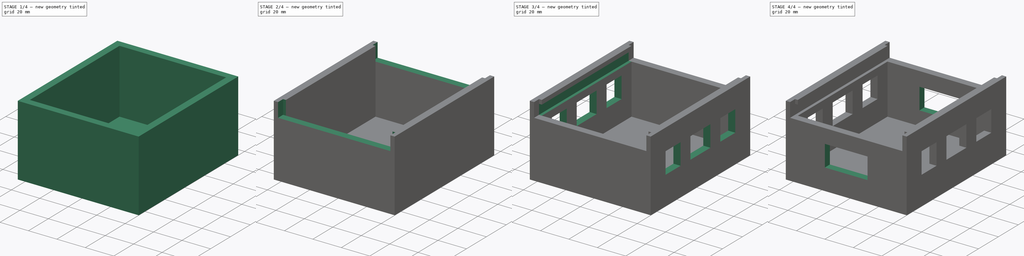
[diagram: build sequence overview — one tinted view per stage of 4, left to right]
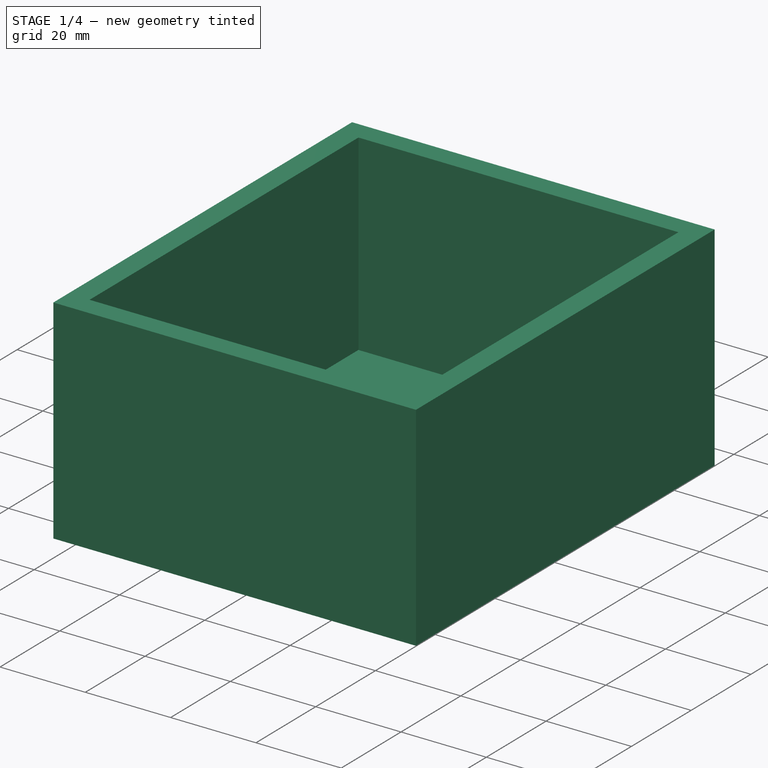
[diagram: stage 1 of 4 — iso view after this stage's code; geometry added in this stage tinted green]
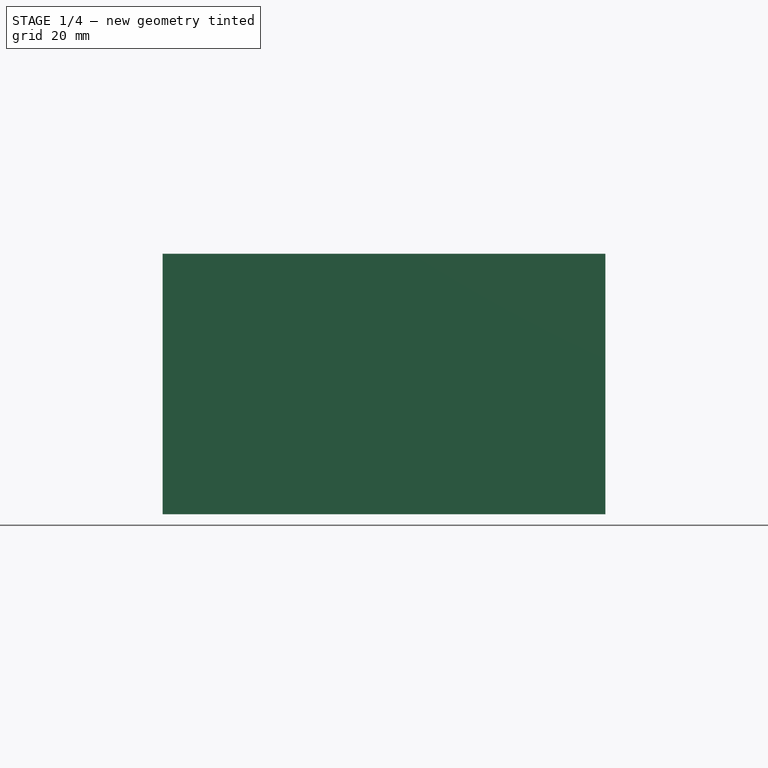
[diagram: stage 1 of 4 — front view after this stage's code; geometry added in this stage tinted green]
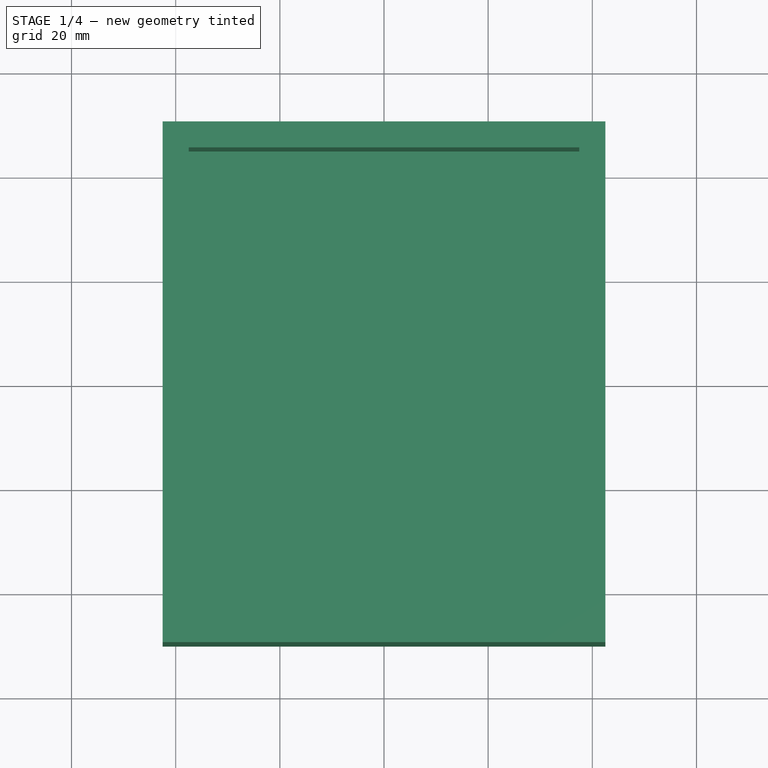
[diagram: stage 1 of 4 — top view after this stage's code; geometry added in this stage tinted green]
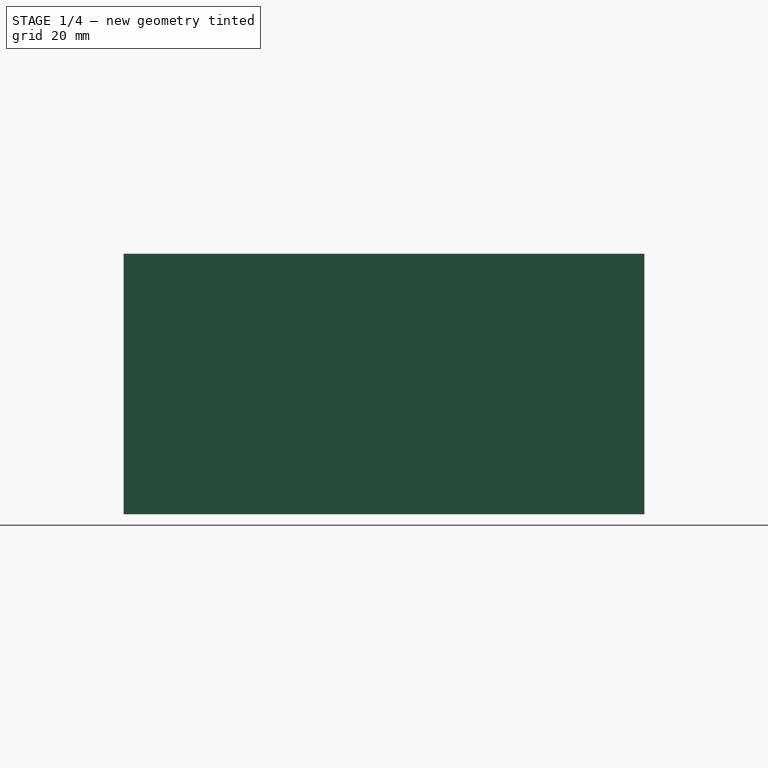
[diagram: stage 1 of 4 — right view after this stage's code; geometry added in this stage tinted green]
FCSTD DOCUMENT  (FreeCAD 0.19R24366 (Git))
Label: Box_raspberry_def
License: All rights reserved
LicenseURL: http://en.wikipedia.org/wiki/All_rights_reserved
objects: Sketcher::SketchObject×15, PartDesign::Pocket×8, PartDesign::Pad×1, PartDesign::Thickness×1, PartDesign::Body×1
note: 36 computed .brp shape members not serialized (recipe doc carries the construction recipe); baked Part::Feature solids carry a one-line shape summary decoded from their .brp

FEATURE [Sketcher::SketchObject] Sketch
  FullyConstrained = true
  MapMode = 5
  Support = -> [XY_Plane]
  sketch-geometry (4):
    g0: LineSegment StartX=-37.5 StartY=-45 StartZ=0 EndX=37.5 EndY=-45 EndZ=0
    g1: LineSegment StartX=37.5 StartY=-45 StartZ=0 EndX=37.5 EndY=45 EndZ=0
    g2: LineSegment StartX=37.5 StartY=45 StartZ=0 EndX=-37.5 EndY=45 EndZ=0
    g3: LineSegment StartX=-37.5 StartY=45 StartZ=0 EndX=-37.5 EndY=-45 EndZ=0
  constraints (11):
    c: Coincident(g0,g1)
    c: Coincident(g1,g2)
    c: Coincident(g2,g3)
    c: Coincident(g3,g0)
    c: Horizontal(g0)
    c: Horizontal(g2)
    c: Vertical(g1)
    c: Vertical(g3)
    c: DistanceX(g0,g0) = 75
    c: DistanceY(g0,g1) = 90
    c: Symmetric(g1,g0,g-1)
FEATURE [PartDesign::Pad] Pad
  Direction = (1,1,1)
  Length = 45
  Length2 = 100
  Profile = -> Sketch
  Type = 0
FEATURE [PartDesign::Thickness] Thickness
  Base = -> Pad [Face6]
  BaseFeature = -> Pad
  Intersection = false
  Join = 1
  Mode = 0
  SupportTransform = false
  Value = 5
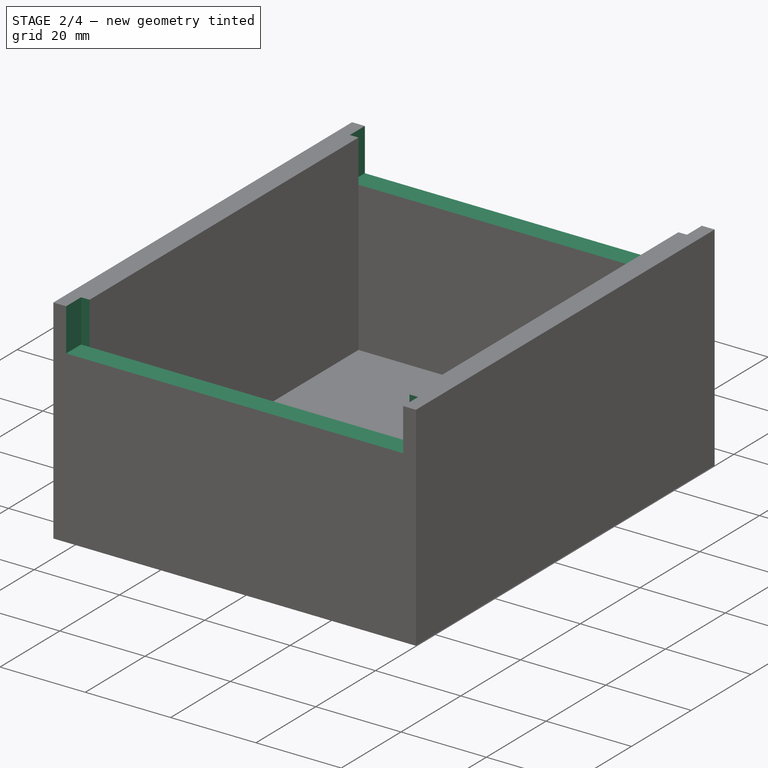
[diagram: stage 2 of 4 — iso view after this stage's code; geometry added in this stage tinted green]
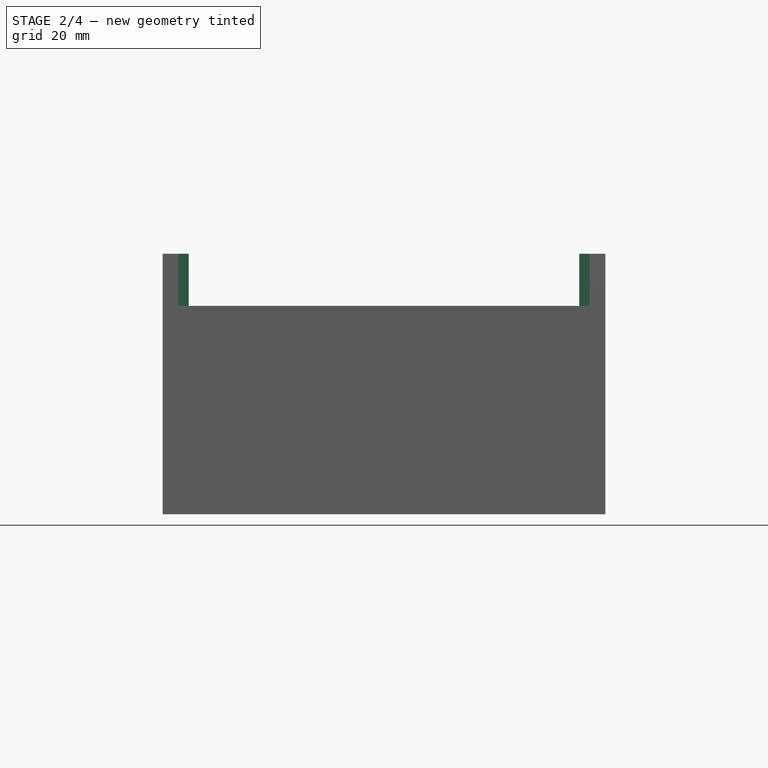
[diagram: stage 2 of 4 — front view after this stage's code; geometry added in this stage tinted green]
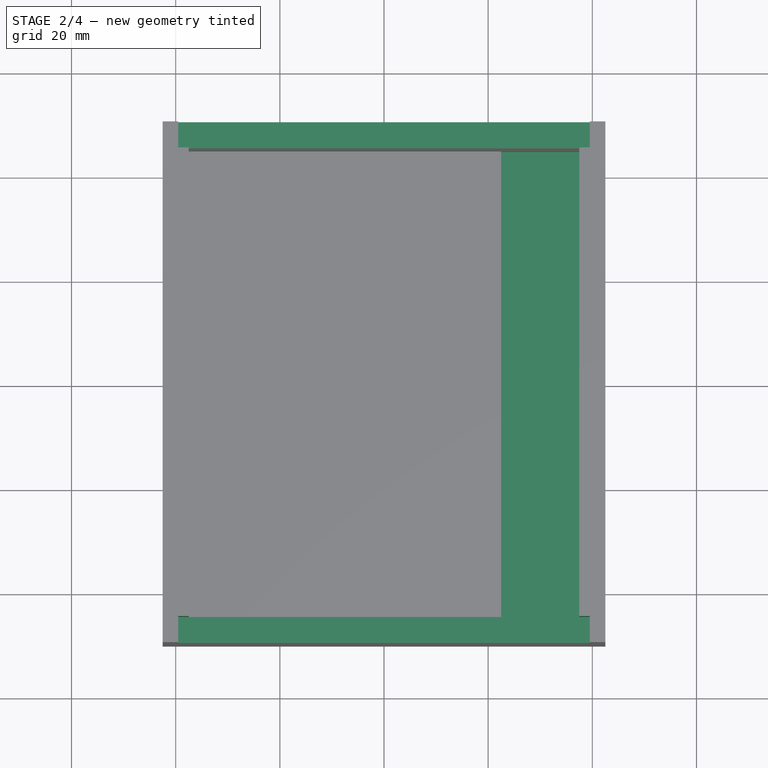
[diagram: stage 2 of 4 — top view after this stage's code; geometry added in this stage tinted green]
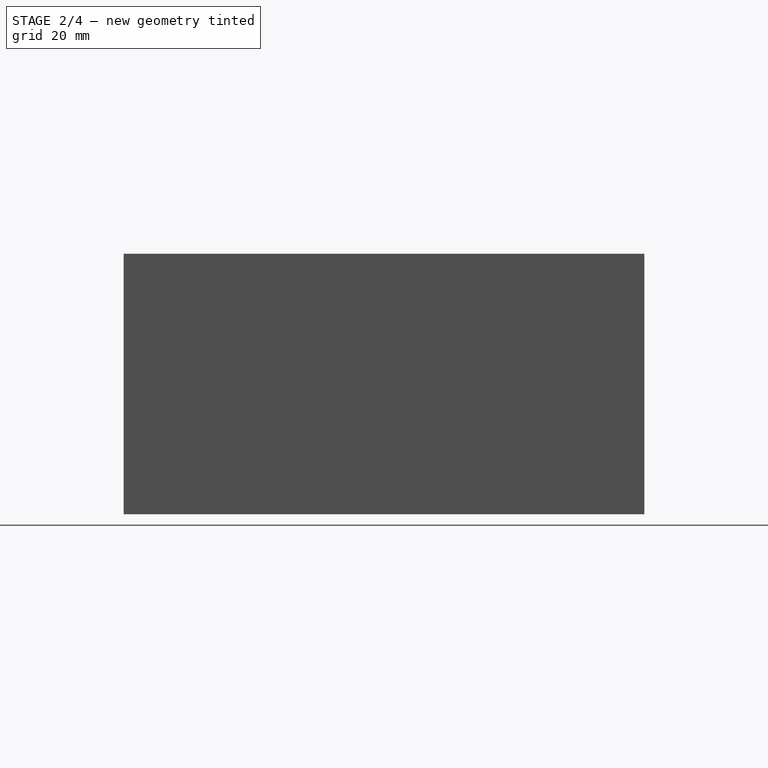
[diagram: stage 2 of 4 — right view after this stage's code; geometry added in this stage tinted green]
FEATURE [Sketcher::SketchObject] Sketch001
  FullyConstrained = true
  MapMode = 5
  Support = -> [Thickness]
FEATURE [Sketcher::SketchObject] Sketch002
  FullyConstrained = true
  MapMode = 5
  Support = -> [Thickness]
  sketch-geometry (4):
    g0: LineSegment StartX=37.5 StartY=45 StartZ=0 EndX=22.5 EndY=45 EndZ=0
    g1: LineSegment StartX=22.5 StartY=45 StartZ=0 EndX=22.5 EndY=-45 EndZ=0
    g2: LineSegment StartX=22.5 StartY=-45 StartZ=0 EndX=37.5 EndY=-45 EndZ=0
    g3: LineSegment StartX=37.5 StartY=-45 StartZ=0 EndX=37.5 EndY=45 EndZ=0
  constraints (12):
    c: Coincident(g0,g1)
    c: Coincident(g1,g2)
    c: Coincident(g2,g3)
    c: Coincident(g3,g0)
    c: Horizontal(g0)
    c: Horizontal(g2)
    c: Vertical(g1)
    c: Vertical(g3)
    c: DistanceX(g1,g2) = 15
    c: DistanceY(g1,g1) = 90
    c: DistanceY(g1,g-1) = 45
    c: DistanceX(g-1,g1) = 22.5
FEATURE [PartDesign::Pocket] Pocket
  BaseFeature = -> Thickness
  Length = 3.5
  Length2 = 100
  Profile = -> Sketch002
  Type = 0
FEATURE [Sketcher::SketchObject] Sketch003
  FullyConstrained = true
  MapMode = 5
  Placement = pos=(0,-50,0) rot=(1,0,0;1.5708rad)
  Support = -> [Pocket]
  sketch-geometry (4):
    g0: LineSegment StartX=-39.5 StartY=45 StartZ=0 EndX=39.5 EndY=45 EndZ=0
    g1: LineSegment StartX=39.5 StartY=45 StartZ=0 EndX=39.5 EndY=35 EndZ=0
    g2: LineSegment StartX=39.5 StartY=35 StartZ=0 EndX=-39.5 EndY=35 EndZ=0
    g3: LineSegment StartX=-39.5 StartY=35 StartZ=0 EndX=-39.5 EndY=45 EndZ=0
  constraints (12):
    c: Coincident(g0,g1)
    c: Coincident(g1,g2)
    c: Coincident(g2,g3)
    c: Coincident(g3,g0)
    c: Horizontal(g0)
    c: Horizontal(g2)
    c: Vertical(g1)
    c: Vertical(g3)
    c: DistanceY(g1,g0) = 10
    c: DistanceY(g-1,g1) = 35
    c: DistanceX(g0,g0) = 79
    c: DistanceX(g0,g-1) = 39.5
FEATURE [PartDesign::Pocket] Pocket001
  BaseFeature = -> Pocket
  Length = 5
  Length2 = 100
  Profile = -> Sketch003
  Type = 0
FEATURE [Sketcher::SketchObject] Sketch004
  FullyConstrained = false
  MapMode = 5
  Placement = pos=(0,50,0) rot=(0,0.707107,0.707107;3.14159rad)
  Support = -> [Pocket001]
  sketch-geometry (4):
    g0: LineSegment StartX=-39.5 StartY=45 StartZ=0 EndX=39.5 EndY=45 EndZ=0
    g1: LineSegment StartX=39.5 StartY=45 StartZ=0 EndX=39.5 EndY=35 EndZ=0
    g2: LineSegment StartX=39.5 StartY=35 StartZ=0 EndX=-39.5 EndY=35 EndZ=0
    g3: LineSegment StartX=-39.5 StartY=35 StartZ=0 EndX=-39.5 EndY=45 EndZ=0
  constraints (11):
    c: Coincident(g0,g1)
    c: Coincident(g1,g2)
    c: Coincident(g2,g3)
    c: Coincident(g3,g0)
    c: Horizontal(g0)
    c: Horizontal(g2)
    c: Vertical(g1)
    c: Vertical(g3)
    c: DistanceY(g1,g0) = 10
    c: DistanceX(g2,g1) = 79
    c: DistanceX(g2,g-1) = 39.5
FEATURE [PartDesign::Pocket] Pocket002
  BaseFeature = -> Pocket001
  Length = 5
  Length2 = 100
  Profile = -> Sketch004
  Type = 0
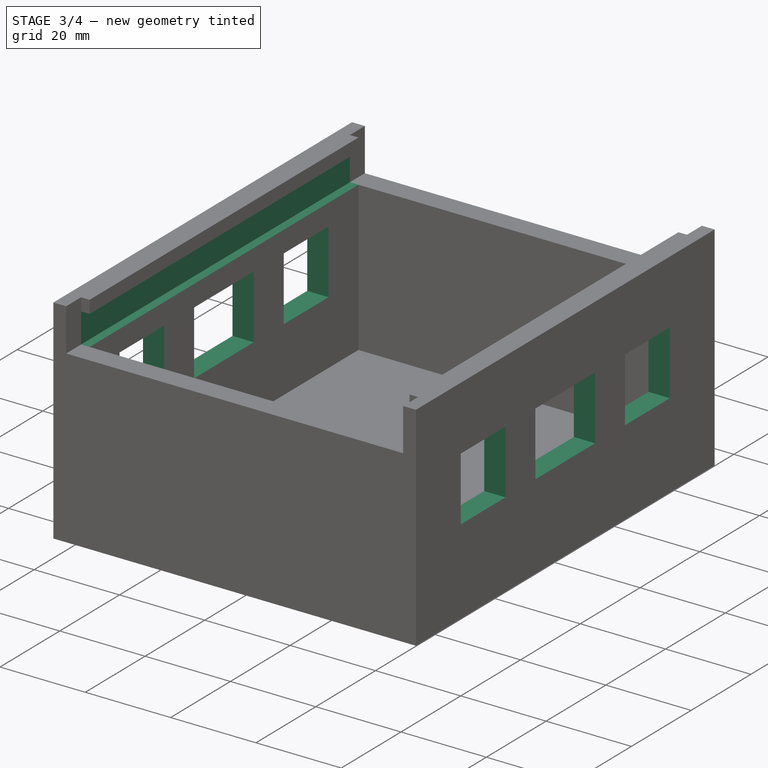
[diagram: stage 3 of 4 — iso view after this stage's code; geometry added in this stage tinted green]
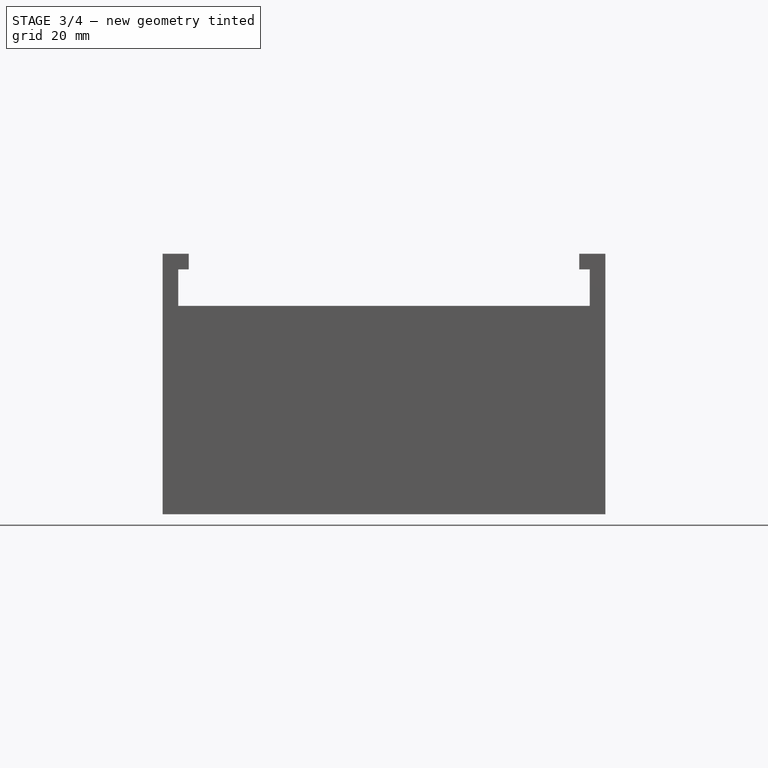
[diagram: stage 3 of 4 — front view after this stage's code; geometry added in this stage tinted green]
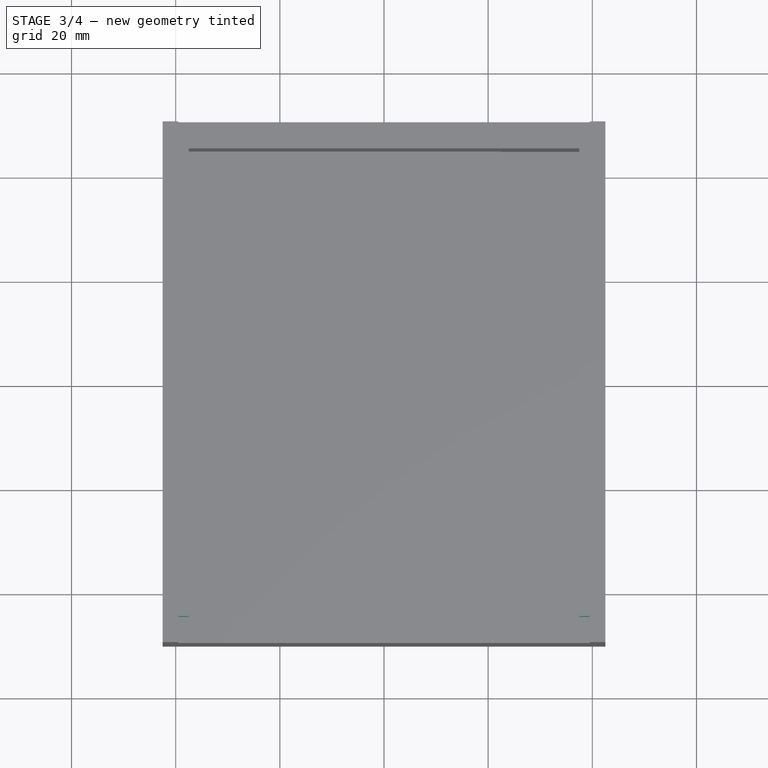
[diagram: stage 3 of 4 — top view after this stage's code; geometry added in this stage tinted green]
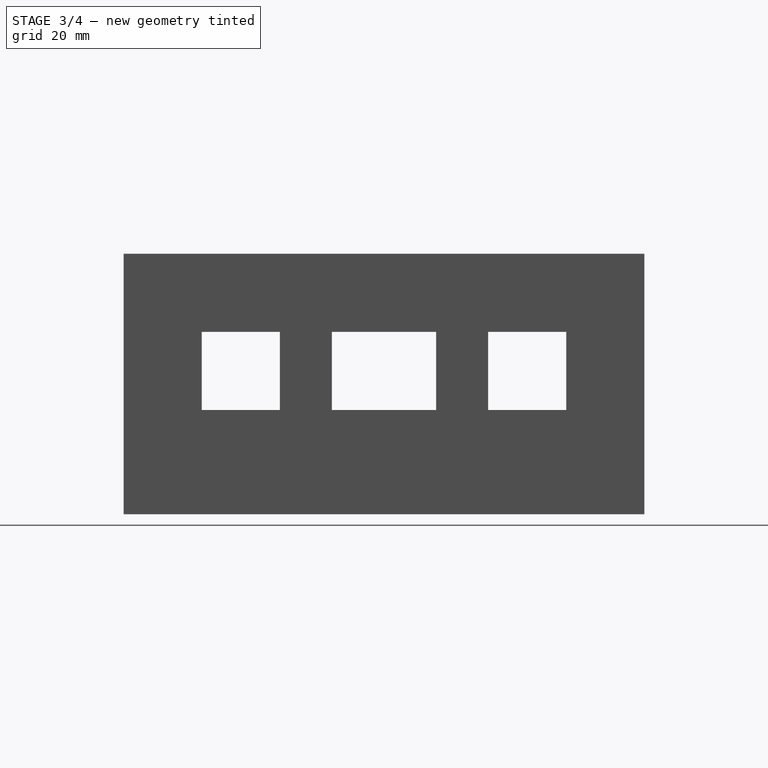
[diagram: stage 3 of 4 — right view after this stage's code; geometry added in this stage tinted green]
FEATURE [Sketcher::SketchObject] Sketch005
  FullyConstrained = true
  MapMode = 5
  Placement = pos=(0,45,0) rot=(0,0.707107,0.707107;3.14159rad)
  Support = -> [Pocket002]
  sketch-geometry (4):
    g0: LineSegment StartX=-39.5 StartY=35 StartZ=0 EndX=39.5 EndY=35 EndZ=0
    g1: LineSegment StartX=39.5 StartY=35 StartZ=0 EndX=39.5 EndY=42 EndZ=0
    g2: LineSegment StartX=39.5 StartY=42 StartZ=0 EndX=-39.5 EndY=42 EndZ=0
    g3: LineSegment StartX=-39.5 StartY=42 StartZ=0 EndX=-39.5 EndY=35 EndZ=0
  constraints (12):
    c: Coincident(g0,g1)
    c: Coincident(g1,g2)
    c: Coincident(g2,g3)
    c: Coincident(g3,g0)
    c: Horizontal(g0)
    c: Horizontal(g2)
    c: Vertical(g1)
    c: Vertical(g3)
    c: DistanceX(g2,g2) = 79
    c: DistanceX(g2,g-1) = 39.5
    c: DistanceY(g-1,g0) = 35
    c: DistanceY(g0,g1) = 7
FEATURE [PartDesign::Pocket] Pocket003
  BaseFeature = -> Pocket002
  Length = 90
  Length2 = 100
  Profile = -> Sketch005
  Type = 0
FEATURE [Sketcher::SketchObject] Sketch006
  FullyConstrained = false
  MapMode = 5
  Placement = pos=(-42.5,0,0) rot=(0.57735,-0.57735,-0.57735;2.0944rad)
  Support = -> [Pocket003]
  sketch-geometry (12):
    g0: LineSegment StartX=-35 StartY=30 StartZ=0 EndX=-20 EndY=30 EndZ=0
    g1: LineSegment StartX=-20 StartY=30 StartZ=0 EndX=-20 EndY=15 EndZ=0
    g2: LineSegment StartX=-20 StartY=15 StartZ=0 EndX=-35 EndY=15 EndZ=0
    g3: LineSegment StartX=-35 StartY=15 StartZ=0 EndX=-35 EndY=30 EndZ=0
    g4: LineSegment StartX=35 StartY=30 StartZ=0 EndX=20 EndY=30 EndZ=0
    g5: LineSegment StartX=20 StartY=30 StartZ=0 EndX=20 EndY=15 EndZ=0
    g6: LineSegment StartX=20 StartY=15 StartZ=0 EndX=35 EndY=15 EndZ=0
    g7: LineSegment StartX=35 StartY=15 StartZ=0 EndX=35 EndY=30 EndZ=0
    g8: LineSegment StartX=-10 StartY=30 StartZ=0 EndX=10 EndY=30 EndZ=0
    g9: LineSegment StartX=10 StartY=30 StartZ=0 EndX=10 EndY=15 EndZ=0
    g10: LineSegment StartX=10 StartY=15 StartZ=0 EndX=-10 EndY=15 EndZ=0
    g11: LineSegment StartX=-10 StartY=15 StartZ=0 EndX=-10 EndY=30 EndZ=0
  constraints (24):
    c: Coincident(g0,g1)
    c: Coincident(g1,g2)
    c: Coincident(g2,g3)
    c: Coincident(g3,g0)
    c: Horizontal(g0)
    c: Horizontal(g2)
    c: Vertical(g1)
    c: Vertical(g3)
    c: Coincident(g4,g5)
    c: Coincident(g5,g6)
    c: Coincident(g6,g7)
    c: Coincident(g7,g4)
    c: Horizontal(g4)
    c: Horizontal(g6)
    c: Vertical(g5)
    c: Vertical(g7)
    c: Coincident(g8,g9)
    c: Coincident(g9,g10)
    c: Coincident(g10,g11)
    c: Coincident(g11,g8)
    c: Horizontal(g8)
    c: Horizontal(g10)
    c: Vertical(g9)
    c: Vertical(g11)
FEATURE [PartDesign::Pocket] Pocket004
  BaseFeature = -> Pocket003
  Length = 5
  Length2 = 100
  Profile = -> Sketch006
  Type = 0
FEATURE [Sketcher::SketchObject] Sketch007
  FullyConstrained = false
  MapMode = 5
  Placement = pos=(42.5,0,0) rot=(0.57735,0.57735,0.57735;2.0944rad)
  Support = -> [Pocket004]
  sketch-geometry (12):
    g0: LineSegment StartX=-35 StartY=30 StartZ=0 EndX=-20 EndY=30 EndZ=0
    g1: LineSegment StartX=-20 StartY=30 StartZ=0 EndX=-20 EndY=15 EndZ=0
    g2: LineSegment StartX=-20 StartY=15 StartZ=0 EndX=-35 EndY=15 EndZ=0
    g3: LineSegment StartX=-35 StartY=15 StartZ=0 EndX=-35 EndY=30 EndZ=0
    g4: LineSegment StartX=35 StartY=30 StartZ=0 EndX=20 EndY=30 EndZ=0
    g5: LineSegment StartX=20 StartY=30 StartZ=0 EndX=20 EndY=15 EndZ=0
    g6: LineSegment StartX=20 StartY=15 StartZ=0 EndX=35 EndY=15 EndZ=0
    g7: LineSegment StartX=35 StartY=15 StartZ=0 EndX=35 EndY=30 EndZ=0
    g8: LineSegment StartX=-10 StartY=30 StartZ=0 EndX=10 EndY=30 EndZ=0
    g9: LineSegment StartX=10 StartY=30 StartZ=0 EndX=10 EndY=15 EndZ=0
    g10: LineSegment StartX=10 StartY=15 StartZ=0 EndX=-10 EndY=15 EndZ=0
    g11: LineSegment StartX=-10 StartY=15 StartZ=0 EndX=-10 EndY=30 EndZ=0
  constraints (24):
    c: Coincident(g0,g1)
    c: Coincident(g1,g2)
    c: Coincident(g2,g3)
    c: Coincident(g3,g0)
    c: Horizontal(g0)
    c: Horizontal(g2)
    c: Vertical(g1)
    c: Vertical(g3)
    c: Coincident(g4,g5)
    c: Coincident(g5,g6)
    c: Coincident(g6,g7)
    c: Coincident(g7,g4)
    c: Horizontal(g4)
    c: Horizontal(g6)
    c: Vertical(g5)
    c: Vertical(g7)
    c: Coincident(g8,g9)
    c: Coincident(g9,g10)
    c: Coincident(g10,g11)
    c: Coincident(g11,g8)
    c: Horizontal(g8)
    c: Horizontal(g10)
    c: Vertical(g9)
    c: Vertical(g11)
FEATURE [PartDesign::Pocket] Pocket005
  BaseFeature = -> Pocket004
  Length = 5
  Length2 = 100
  Profile = -> Sketch007
  Type = 0
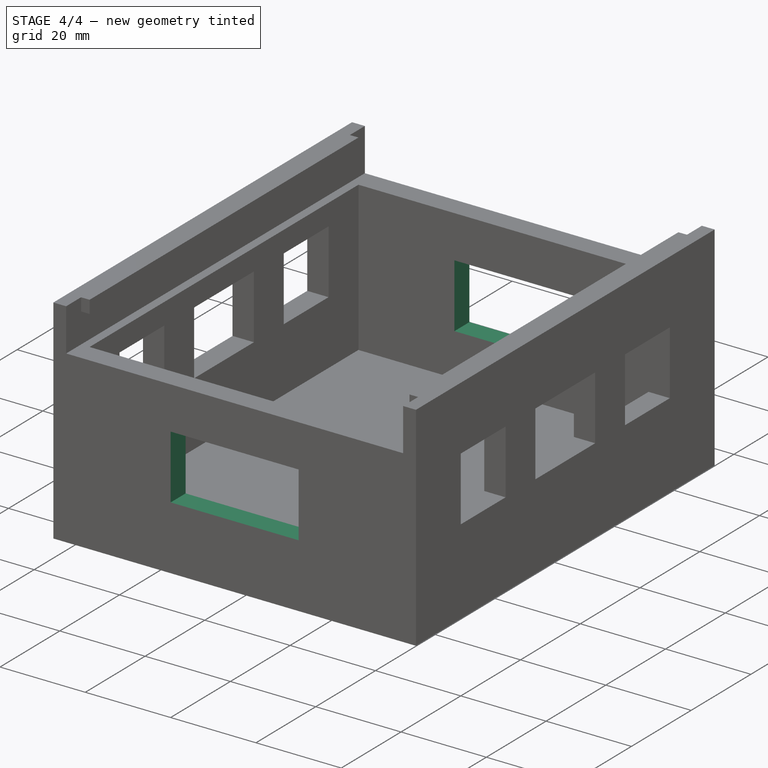
[diagram: stage 4 of 4 — iso view after this stage's code; geometry added in this stage tinted green]
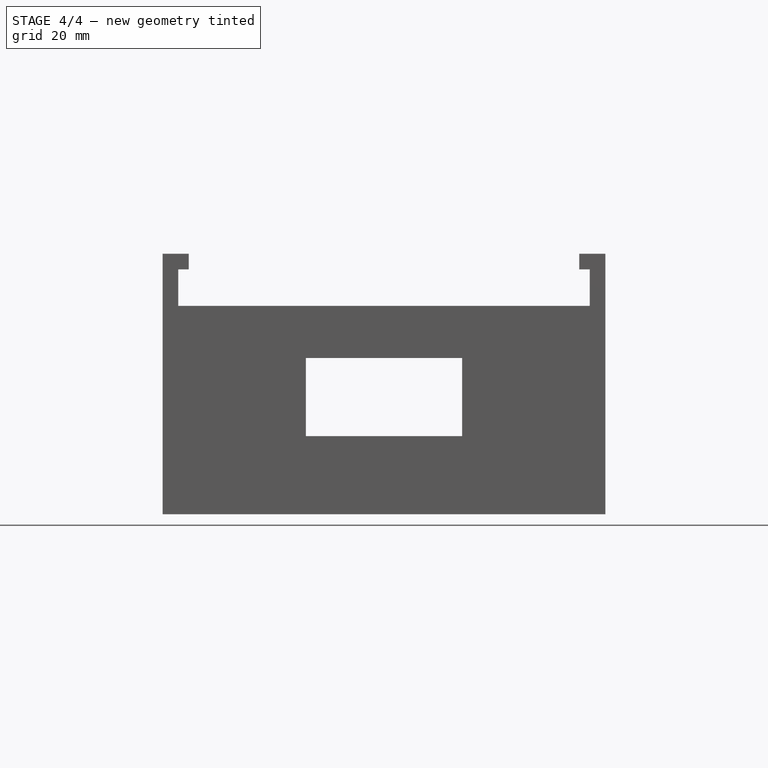
[diagram: stage 4 of 4 — front view after this stage's code; geometry added in this stage tinted green]
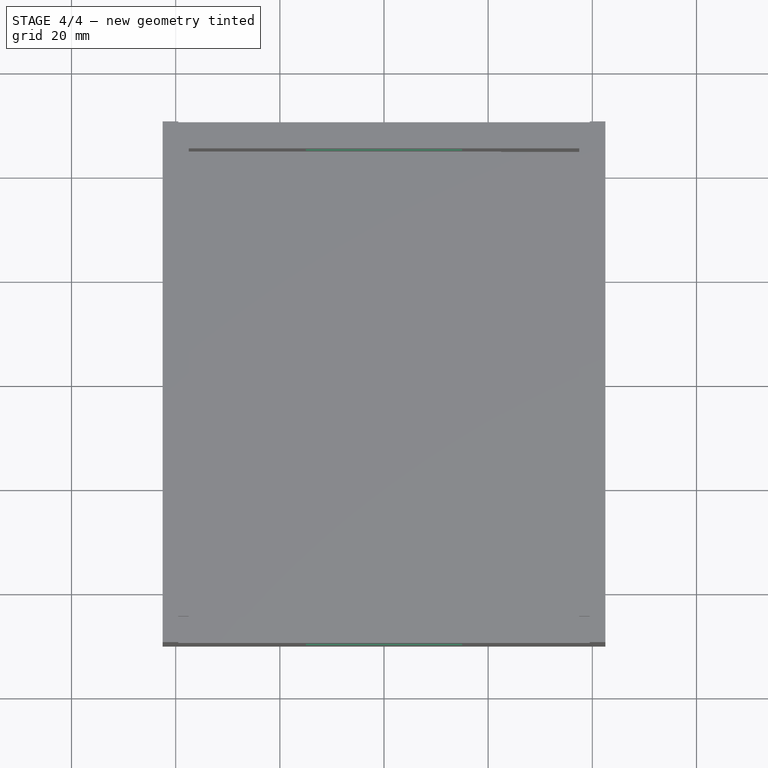
[diagram: stage 4 of 4 — top view after this stage's code; geometry added in this stage tinted green]
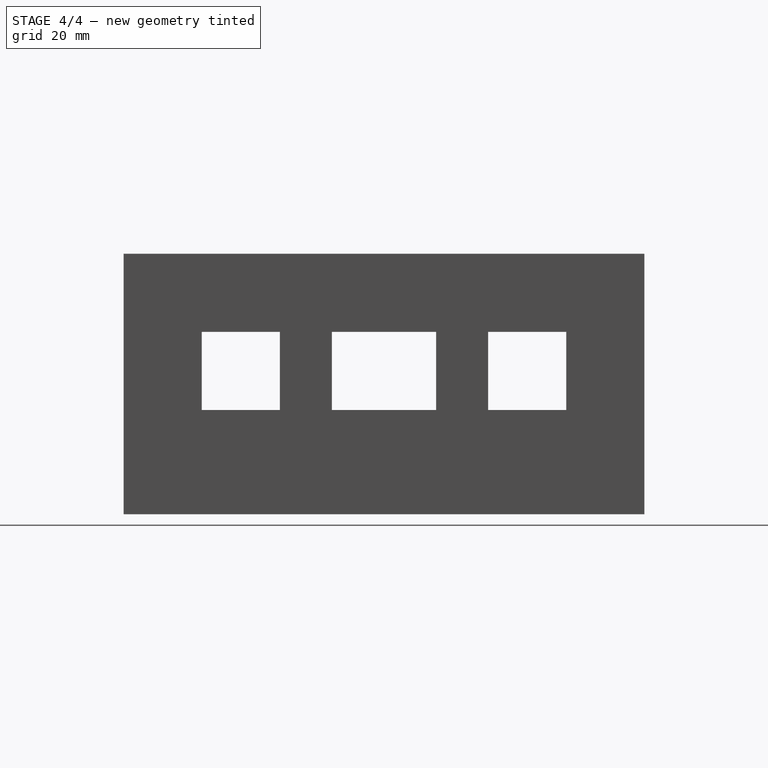
[diagram: stage 4 of 4 — right view after this stage's code; geometry added in this stage tinted green]
FEATURE [Sketcher::SketchObject] Sketch008
  FullyConstrained = false
  MapMode = 5
  Placement = pos=(0,-50,0) rot=(1,0,0;1.5708rad)
  Support = -> [Pocket005]
  sketch-geometry (4):
    g0: LineSegment StartX=-15 StartY=10 StartZ=0 EndX=15 EndY=10 EndZ=0
    g1: LineSegment StartX=15 StartY=10 StartZ=0 EndX=15 EndY=25 EndZ=0
    g2: LineSegment StartX=15 StartY=25 StartZ=0 EndX=-15 EndY=25 EndZ=0
    g3: LineSegment StartX=-15 StartY=25 StartZ=0 EndX=-15 EndY=10 EndZ=0
  constraints (8):
    c: Coincident(g0,g1)
    c: Coincident(g1,g2)
    c: Coincident(g2,g3)
    c: Coincident(g3,g0)
    c: Horizontal(g0)
    c: Horizontal(g2)
    c: Vertical(g1)
    c: Vertical(g3)
FEATURE [PartDesign::Pocket] Pocket006
  BaseFeature = -> Pocket005
  Length = 5
  Length2 = 100
  Profile = -> Sketch008
  Type = 0
FEATURE [Sketcher::SketchObject] Sketch009
  FullyConstrained = false
  MapMode = 5
  Placement = pos=(0,50,0) rot=(0,0.707107,0.707107;3.14159rad)
  Support = -> [Pocket006]
  sketch-geometry (4):
    g0: LineSegment StartX=-15 StartY=25 StartZ=0 EndX=15 EndY=25 EndZ=0
    g1: LineSegment StartX=15 StartY=25 StartZ=0 EndX=15 EndY=10 EndZ=0
    g2: LineSegment StartX=15 StartY=10 StartZ=0 EndX=-15 EndY=10 EndZ=0
    g3: LineSegment StartX=-15 StartY=10 StartZ=0 EndX=-15 EndY=25 EndZ=0
  constraints (8):
    c: Coincident(g0,g1)
    c: Coincident(g1,g2)
    c: Coincident(g2,g3)
    c: Coincident(g3,g0)
    c: Horizontal(g0)
    c: Horizontal(g2)
    c: Vertical(g1)
    c: Vertical(g3)
FEATURE [PartDesign::Pocket] Pocket007
  BaseFeature = -> Pocket006
  Length = 5
  Length2 = 100
  Profile = -> Sketch009
  Type = 0
FEATURE [Sketcher::SketchObject] Sketch010
  FullyConstrained = true
  MapMode = 5
  Placement = pos=(0,50,0) rot=(0,0.707107,0.707107;3.14159rad)
  Support = -> [Pocket007]
FEATURE [Sketcher::SketchObject] Sketch011
  FullyConstrained = true
  MapMode = 5
  Placement = pos=(37.5,0,0) rot=(0.57735,-0.57735,-0.57735;2.0944rad)
  Support = -> [Pocket007]
FEATURE [Sketcher::SketchObject] Sketch012
  FullyConstrained = true
  MapMode = 5
  Placement = pos=(37.5,0,0) rot=(0.57735,-0.57735,-0.57735;2.0944rad)
  Support = -> [Pocket007]
FEATURE [Sketcher::SketchObject] Sketch013
  FullyConstrained = true
  MapMode = 5
  Placement = pos=(0,45,0) rot=(0,0.707107,0.707107;3.14159rad)
  Support = -> [Pocket007]
FEATURE [Sketcher::SketchObject] Sketch014
  FullyConstrained = true
  MapMode = 5
  Placement = pos=(-42.5,0,0) rot=(0.57735,-0.57735,-0.57735;2.0944rad)
  Support = -> [Pocket007]
FEATURE [PartDesign::Body] Body
  Group = -> [Sketch,Pad,Thickness,Sketch001,Sketch002,Pocket,Sketch003,Pocket001,Sketch004,Pocket002,Sketch005,Pocket003,Sketch006,Pocket004,Sketch007,Pocket005,Sketch008,Pocket006,Sketch009,Pocket007,Sketch010,Sketch011,Sketch012,Sketch013,Sketch014]
  Origin = -> Origin
  Tip = -> Pocket007
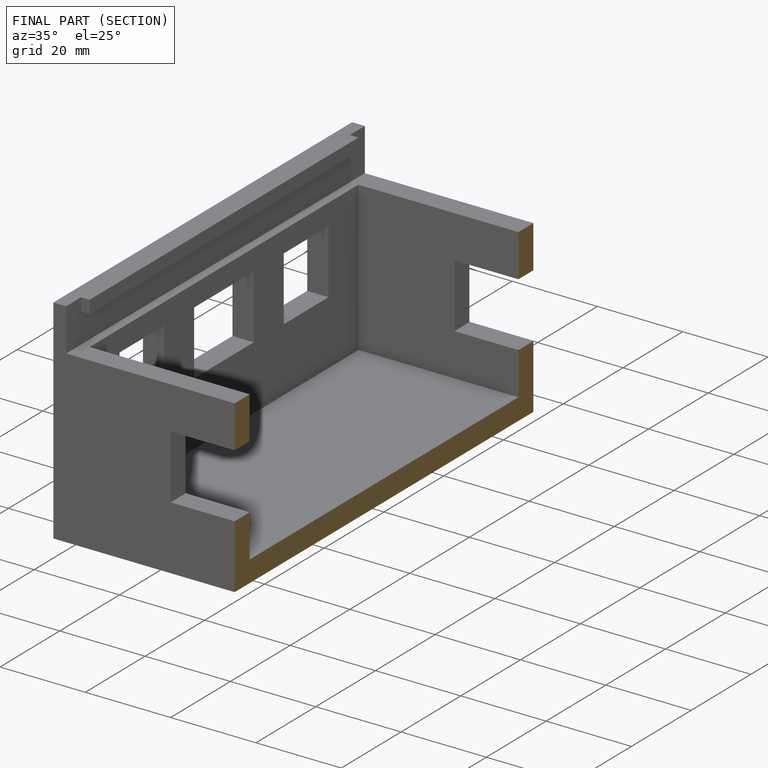
[diagram: finished part — half-section view (interior)]
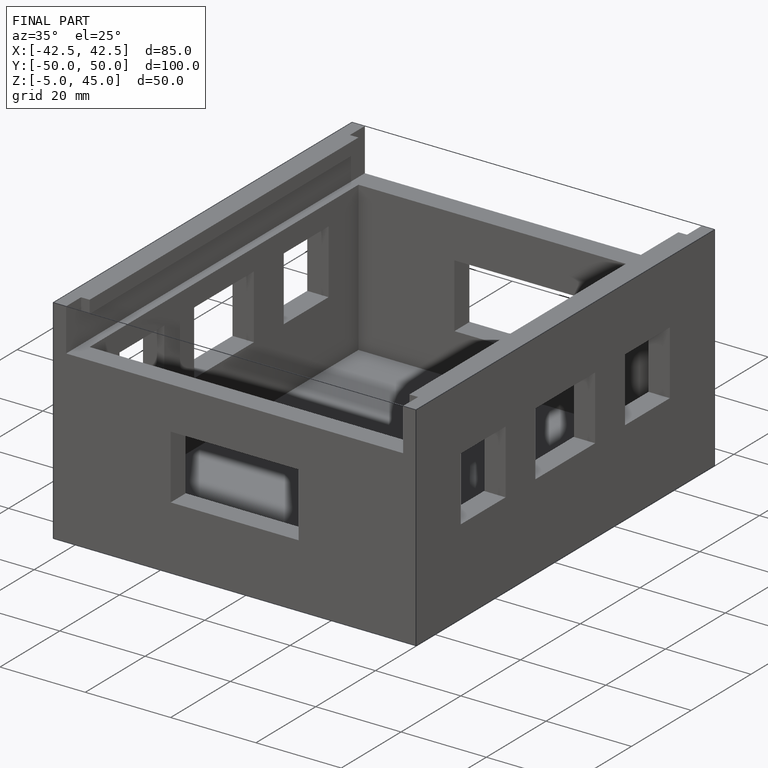
[diagram: finished part — iso view with bounding-box wireframe]
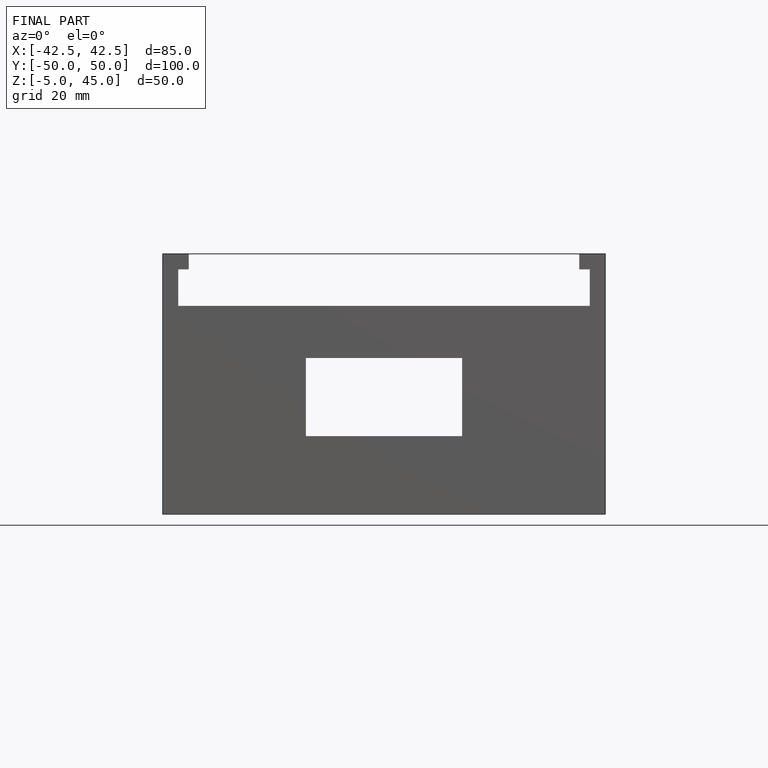
[diagram: finished part — front view with bounding-box wireframe]
